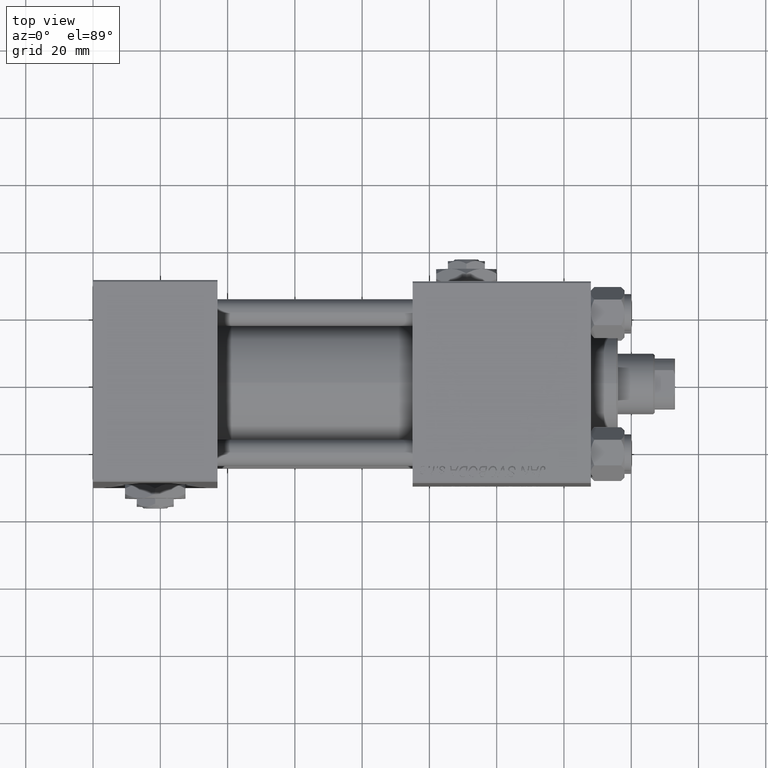
[diagram: clean part render]
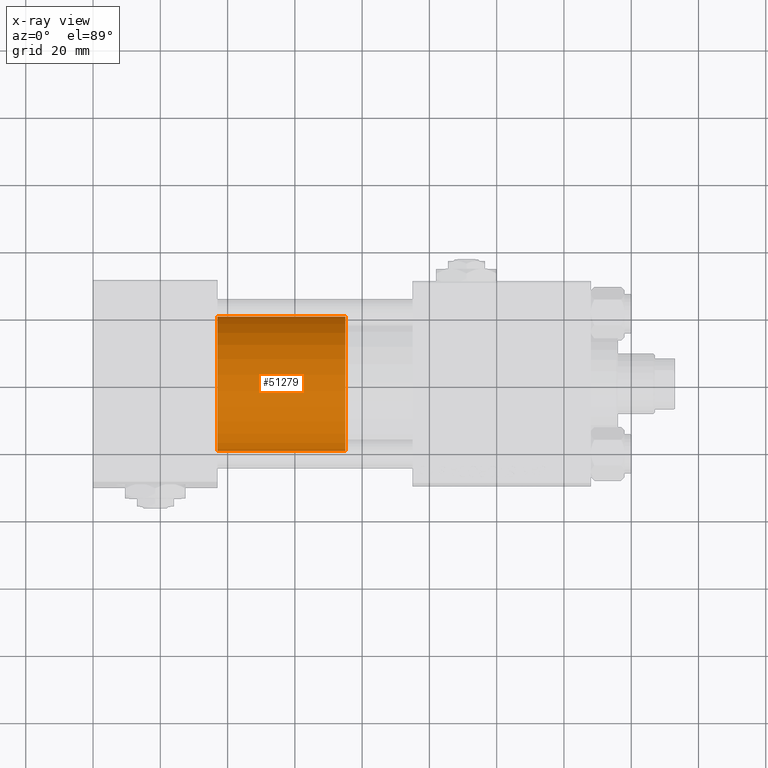
[diagram: x-ray — body ghosted, one internal face saturated and labeled with its STEP entity id]
A machine part, top view, then the same camera in x-ray: the body is ghosted and one INTERNAL B-rep face — a face not visible from any outside direction — is saturated and labeled: STEP entity #51279.
In plain terms, the highlighted cylindrical surface (partial cylindrical patch) has radius 20 mm, axis along (-1, 0, 0).
Its self-contained STEP definition (entity closure, byte-faithful):
#3724 = VERTEX_POINT ( 'NONE', #9772 ) ;
#5005 = VERTEX_POINT ( 'NONE', #50048 ) ;
#5772 = CYLINDRICAL_SURFACE ( 'NONE', #39704, 20.00000000000000000 ) ;
#5778 = DIRECTION ( 'NONE',  ( 0.000000000000000000, 0.000000000000000000, 1.000000000000000000 ) ) ;
#7144 = ORIENTED_EDGE ( 'NONE', *, *, #32954, .F. ) ;
#7546 = CARTESIAN_POINT ( 'NONE',  ( -20.00000000000000000, 0.000000000000000000, 38.00000000000000000 ) ) ;
#7579 = CIRCLE ( 'NONE', #21799, 20.00000000000000000 ) ;
#9170 = DIRECTION ( 'NONE',  ( -0.000000000000000000, -0.000000000000000000, -1.000000000000000000 ) ) ;
#9772 = CARTESIAN_POINT ( 'NONE',  ( 20.00000000000000000, 2.449293598294706513E-15, 38.00000000000000000 ) ) ;
#10597 = AXIS2_PLACEMENT_3D ( 'NONE', #19269, #50713, #47026 ) ;
#12286 = LINE ( 'NONE', #21210, #34738 ) ;
#13422 = ORIENTED_EDGE ( 'NONE', *, *, #20870, .T. ) ;
#15860 = VERTEX_POINT ( 'NONE', #51132 ) ;
#17582 = CARTESIAN_POINT ( 'NONE',  ( -20.00000000000000000, 0.000000000000000000, 0.000000000000000000 ) ) ;
#17800 = FACE_OUTER_BOUND ( 'NONE', #25728, .T. ) ;
#19269 = CARTESIAN_POINT ( 'NONE',  ( 0.000000000000000000, 0.000000000000000000, 38.00000000000000000 ) ) ;
#20870 = EDGE_CURVE ( 'NONE', #39063, #5005, #7579, .T. ) ;
#21210 = CARTESIAN_POINT ( 'NONE',  ( 20.00000000000000000, 2.449293598294706513E-15, 38.00000000000000000 ) ) ;
#21799 = AXIS2_PLACEMENT_3D ( 'NONE', #29327, #5778, #41914 ) ;
#23147 = EDGE_CURVE ( 'NONE', #15860, #39063, #43440, .T. ) ;
#23706 = ORIENTED_EDGE ( 'NONE', *, *, #39574, .F. ) ;
#25728 = EDGE_LOOP ( 'NONE', ( #7144, #23706, #36881, #13422 ) ) ;
#29327 = CARTESIAN_POINT ( 'NONE',  ( 0.000000000000000000, 0.000000000000000000, 0.000000000000000000 ) ) ;
#32954 = EDGE_CURVE ( 'NONE', #3724, #5005, #12286, .T. ) ;
#33492 = CARTESIAN_POINT ( 'NONE',  ( 0.000000000000000000, 0.000000000000000000, 38.00000000000000000 ) ) ;
#33750 = DIRECTION ( 'NONE',  ( -1.000000000000000000, 0.000000000000000000, 0.000000000000000000 ) ) ;
#34738 = VECTOR ( 'NONE', #44788, 1000.000000000000000 ) ;
#35224 = VECTOR ( 'NONE', #51547, 1000.000000000000000 ) ;
#36881 = ORIENTED_EDGE ( 'NONE', *, *, #23147, .T. ) ;
#39063 = VERTEX_POINT ( 'NONE', #17582 ) ;
#39574 = EDGE_CURVE ( 'NONE', #15860, #3724, #51574, .T. ) ;
#39704 = AXIS2_PLACEMENT_3D ( 'NONE', #33492, #9170, #33750 ) ;
#41914 = DIRECTION ( 'NONE',  ( 1.000000000000000000, 0.000000000000000000, 0.000000000000000000 ) ) ;
#43440 = LINE ( 'NONE', #7546, #35224 ) ;
#44788 = DIRECTION ( 'NONE',  ( -0.000000000000000000, -0.000000000000000000, -1.000000000000000000 ) ) ;
#47026 = DIRECTION ( 'NONE',  ( 1.000000000000000000, 0.000000000000000000, 0.000000000000000000 ) ) ;
#50048 = CARTESIAN_POINT ( 'NONE',  ( 20.00000000000000000, 2.449293598294706513E-15, 0.000000000000000000 ) ) ;
#50713 = DIRECTION ( 'NONE',  ( 0.000000000000000000, 0.000000000000000000, 1.000000000000000000 ) ) ;
#51132 = CARTESIAN_POINT ( 'NONE',  ( -20.00000000000000000, 0.000000000000000000, 38.00000000000000000 ) ) ;
#51279 = ADVANCED_FACE ( 'NONE', ( #17800 ), #5772, .T. ) ;
#51547 = DIRECTION ( 'NONE',  ( -0.000000000000000000, -0.000000000000000000, -1.000000000000000000 ) ) ;
#51574 = CIRCLE ( 'NONE', #10597, 20.00000000000000000 ) ;